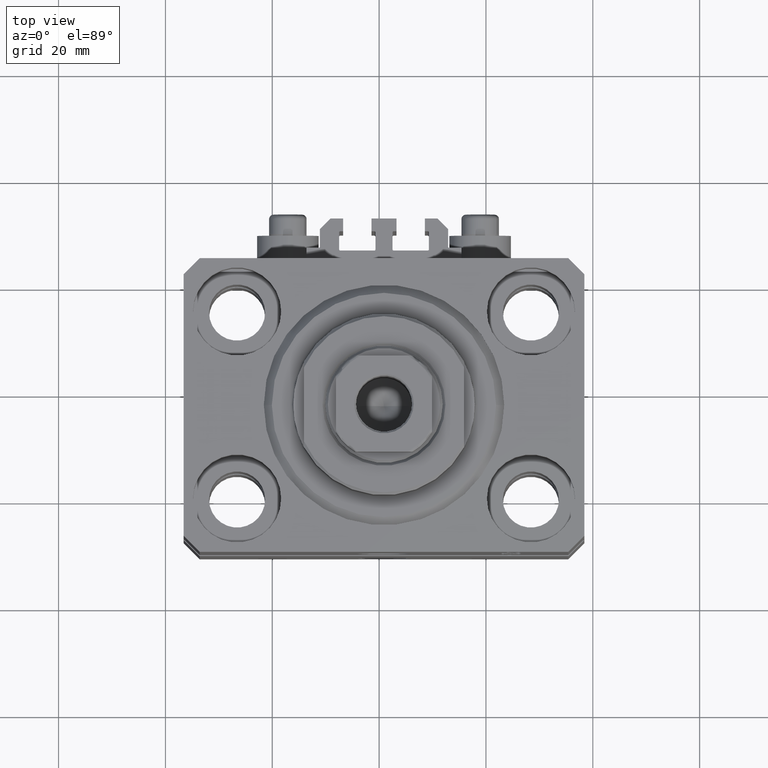
[diagram: clean part render]
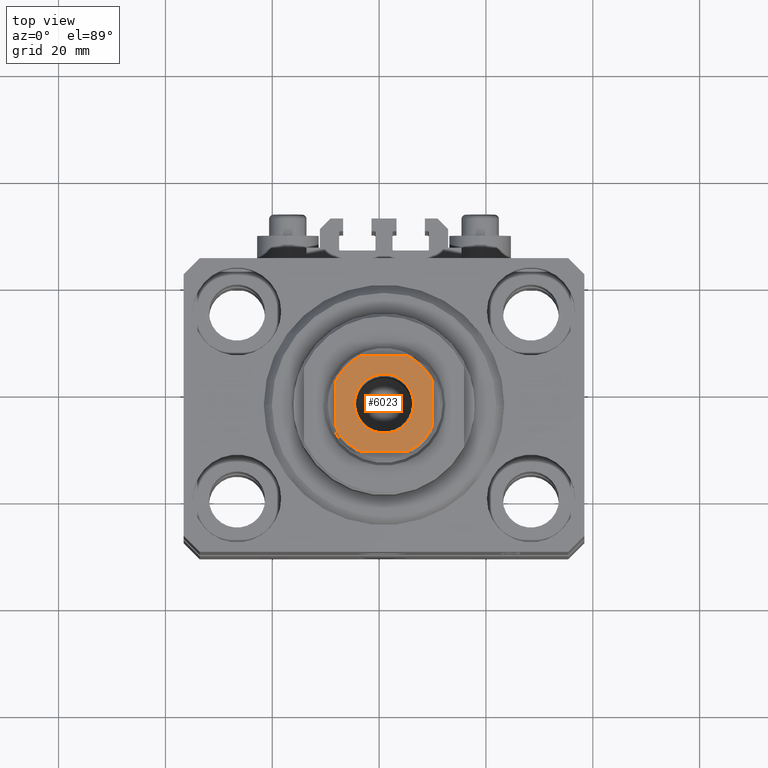
[diagram: same view with one face highlighted and labeled with its STEP entity id]
A machine part, top view. The second image highlights one B-rep face of the part: STEP entity #6023.
In plain terms, the highlighted planar face has unit normal (0, 0, 1).
Its self-contained STEP definition (entity closure, byte-faithful):
#748 = FACE_OUTER_BOUND ( 'NONE', #26894, .T. ) ;
#1466 = CARTESIAN_POINT ( 'NONE',  ( -8.999999999999998224, -9.000000000000001776, 85.10000000000000853 ) ) ;
#2529 = CARTESIAN_POINT ( 'NONE',  ( 0.000000000000000000, 0.000000000000000000, 85.10000000000000853 ) ) ;
#2531 = DIRECTION ( 'NONE',  ( 0.000000000000000000, -0.000000000000000000, -1.000000000000000000 ) ) ;
#3457 = CARTESIAN_POINT ( 'NONE',  ( 4.358898943540671311, -9.000000000000001776, 85.10000000000000853 ) ) ;
#3491 = VERTEX_POINT ( 'NONE', #3457 ) ;
#3780 = CIRCLE ( 'NONE', #36678, 10.00000000000000000 ) ;
#4042 = VERTEX_POINT ( 'NONE', #45029 ) ;
#4083 = VECTOR ( 'NONE', #24020, 1000.000000000000000 ) ;
#5099 = VERTEX_POINT ( 'NONE', #42933 ) ;
#5290 = CARTESIAN_POINT ( 'NONE',  ( -9.000000000000000000, 4.358898943540674864, 85.10000000000000853 ) ) ;
#6023 = ADVANCED_FACE ( 'NONE', ( #18975, #748 ), #33597, .T. ) ;
#7022 = CIRCLE ( 'NONE', #39920, 10.00000000000000000 ) ;
#7660 = VERTEX_POINT ( 'NONE', #5290 ) ;
#7718 = DIRECTION ( 'NONE',  ( -0.000000000000000000, 0.000000000000000000, 1.000000000000000000 ) ) ;
#7723 = CIRCLE ( 'NONE', #39069, 5.549999999999985612 ) ;
#7838 = EDGE_CURVE ( 'NONE', #5099, #20630, #3780, .T. ) ;
#7899 = CARTESIAN_POINT ( 'NONE',  ( 0.000000000000000000, 0.000000000000000000, 85.10000000000000853 ) ) ;
#8609 = AXIS2_PLACEMENT_3D ( 'NONE', #2529, #46568, #17148 ) ;
#9136 = ORIENTED_EDGE ( 'NONE', *, *, #23672, .T. ) ;
#9386 = CARTESIAN_POINT ( 'NONE',  ( 9.000000000000000000, 8.999999999999998224, 85.10000000000000853 ) ) ;
#10249 = CARTESIAN_POINT ( 'NONE',  ( 4.358898943540677529, 8.999999999999998224, 85.10000000000000853 ) ) ;
#11842 = EDGE_CURVE ( 'NONE', #13018, #47342, #19110, .T. ) ;
#11993 = CARTESIAN_POINT ( 'NONE',  ( 5.549999999999985612, 0.000000000000000000, 85.10000000000000853 ) ) ;
#12283 = VERTEX_POINT ( 'NONE', #10249 ) ;
#12573 = ORIENTED_EDGE ( 'NONE', *, *, #20111, .T. ) ;
#12665 = DIRECTION ( 'NONE',  ( -0.000000000000000000, 0.000000000000000000, 1.000000000000000000 ) ) ;
#13018 = VERTEX_POINT ( 'NONE', #44812 ) ;
#13020 = LINE ( 'NONE', #27204, #24001 ) ;
#13194 = LINE ( 'NONE', #24003, #41563 ) ;
#14018 = CARTESIAN_POINT ( 'NONE',  ( 0.000000000000000000, 0.000000000000000000, 85.10000000000000853 ) ) ;
#14232 = VERTEX_POINT ( 'NONE', #32368 ) ;
#16806 = CARTESIAN_POINT ( 'NONE',  ( -4.358898943540671311, -9.000000000000001776, 85.10000000000000853 ) ) ;
#17127 = EDGE_CURVE ( 'NONE', #3491, #4042, #7022, .T. ) ;
#17148 = DIRECTION ( 'NONE',  ( 1.000000000000000000, 0.000000000000000000, 0.000000000000000000 ) ) ;
#18275 = EDGE_CURVE ( 'NONE', #30333, #7660, #32355, .T. ) ;
#18414 = EDGE_CURVE ( 'NONE', #20630, #3491, #39059, .T. ) ;
#18975 = FACE_BOUND ( 'NONE', #22254, .T. ) ;
#18993 = CARTESIAN_POINT ( 'NONE',  ( -4.358898943540678417, 8.999999999999998224, 85.10000000000000853 ) ) ;
#19110 = CIRCLE ( 'NONE', #24484, 5.549999999999985612 ) ;
#19750 = EDGE_CURVE ( 'NONE', #7660, #5099, #13194, .T. ) ;
#19758 = DIRECTION ( 'NONE',  ( -1.000000000000000000, -0.000000000000000000, -0.000000000000000000 ) ) ;
#20011 = EDGE_CURVE ( 'NONE', #14232, #12283, #33927, .T. ) ;
#20111 = EDGE_CURVE ( 'NONE', #12283, #30333, #13020, .T. ) ;
#20238 = ORIENTED_EDGE ( 'NONE', *, *, #20011, .T. ) ;
#20505 = DIRECTION ( 'NONE',  ( 1.000000000000000000, 0.000000000000000000, 0.000000000000000000 ) ) ;
#20580 = AXIS2_PLACEMENT_3D ( 'NONE', #25705, #7718, #44583 ) ;
#20630 = VERTEX_POINT ( 'NONE', #16806 ) ;
#20746 = CARTESIAN_POINT ( 'NONE',  ( 0.000000000000000000, 0.000000000000000000, 85.10000000000000853 ) ) ;
#21122 = LINE ( 'NONE', #9386, #4083 ) ;
#22254 = EDGE_LOOP ( 'NONE', ( #24289, #33394 ) ) ;
#23672 = EDGE_CURVE ( 'NONE', #4042, #14232, #21122, .T. ) ;
#23980 = ORIENTED_EDGE ( 'NONE', *, *, #7838, .T. ) ;
#24001 = VECTOR ( 'NONE', #19758, 1000.000000000000000 ) ;
#24003 = CARTESIAN_POINT ( 'NONE',  ( -9.000000000000000000, 8.999999999999998224, 85.10000000000000853 ) ) ;
#24020 = DIRECTION ( 'NONE',  ( -9.637352644315595243E-17, 1.000000000000000000, -0.000000000000000000 ) ) ;
#24289 = ORIENTED_EDGE ( 'NONE', *, *, #32483, .T. ) ;
#24484 = AXIS2_PLACEMENT_3D ( 'NONE', #38139, #26450, #37915 ) ;
#25705 = CARTESIAN_POINT ( 'NONE',  ( 0.000000000000000000, 0.000000000000000000, 85.10000000000000853 ) ) ;
#26450 = DIRECTION ( 'NONE',  ( 0.000000000000000000, -0.000000000000000000, -1.000000000000000000 ) ) ;
#26894 = EDGE_LOOP ( 'NONE', ( #38618, #23980, #28819, #39607, #9136, #20238, #12573, #34358 ) ) ;
#27204 = CARTESIAN_POINT ( 'NONE',  ( -9.000000000000000000, 8.999999999999998224, 85.10000000000000853 ) ) ;
#27829 = DIRECTION ( 'NONE',  ( 1.000000000000000000, 0.000000000000000000, 0.000000000000000000 ) ) ;
#28657 = DIRECTION ( 'NONE',  ( -0.000000000000000000, 0.000000000000000000, 1.000000000000000000 ) ) ;
#28819 = ORIENTED_EDGE ( 'NONE', *, *, #18414, .T. ) ;
#28890 = DIRECTION ( 'NONE',  ( -0.000000000000000000, 0.000000000000000000, 1.000000000000000000 ) ) ;
#30182 = DIRECTION ( 'NONE',  ( 1.000000000000000000, 0.000000000000000000, 0.000000000000000000 ) ) ;
#30333 = VERTEX_POINT ( 'NONE', #18993 ) ;
#32015 = CARTESIAN_POINT ( 'NONE',  ( 0.000000000000000000, 0.000000000000000000, 85.10000000000000853 ) ) ;
#32355 = CIRCLE ( 'NONE', #8609, 10.00000000000000000 ) ;
#32368 = CARTESIAN_POINT ( 'NONE',  ( 9.000000000000000000, 4.358898943540675752, 85.10000000000000853 ) ) ;
#32483 = EDGE_CURVE ( 'NONE', #47342, #13018, #7723, .T. ) ;
#33168 = AXIS2_PLACEMENT_3D ( 'NONE', #32015, #28890, #35372 ) ;
#33394 = ORIENTED_EDGE ( 'NONE', *, *, #11842, .T. ) ;
#33597 = PLANE ( 'NONE',  #20580 ) ;
#33927 = CIRCLE ( 'NONE', #33168, 10.00000000000000000 ) ;
#34358 = ORIENTED_EDGE ( 'NONE', *, *, #18275, .T. ) ;
#35372 = DIRECTION ( 'NONE',  ( 1.000000000000000000, 0.000000000000000000, 0.000000000000000000 ) ) ;
#36678 = AXIS2_PLACEMENT_3D ( 'NONE', #7899, #12665, #30182 ) ;
#37915 = DIRECTION ( 'NONE',  ( 1.000000000000000000, 0.000000000000000000, 0.000000000000000000 ) ) ;
#38139 = CARTESIAN_POINT ( 'NONE',  ( 0.000000000000000000, 0.000000000000000000, 85.10000000000000853 ) ) ;
#38618 = ORIENTED_EDGE ( 'NONE', *, *, #19750, .T. ) ;
#39059 = LINE ( 'NONE', #1466, #41489 ) ;
#39069 = AXIS2_PLACEMENT_3D ( 'NONE', #20746, #2531, #44650 ) ;
#39607 = ORIENTED_EDGE ( 'NONE', *, *, #17127, .T. ) ;
#39920 = AXIS2_PLACEMENT_3D ( 'NONE', #14018, #28657, #20505 ) ;
#41489 = VECTOR ( 'NONE', #27829, 1000.000000000000000 ) ;
#41563 = VECTOR ( 'NONE', #47350, 1000.000000000000000 ) ;
#42933 = CARTESIAN_POINT ( 'NONE',  ( -9.000000000000000000, -4.358898943540675752, 85.10000000000000853 ) ) ;
#44583 = DIRECTION ( 'NONE',  ( 1.000000000000000000, 0.000000000000000000, 0.000000000000000000 ) ) ;
#44650 = DIRECTION ( 'NONE',  ( 1.000000000000000000, 0.000000000000000000, 0.000000000000000000 ) ) ;
#44812 = CARTESIAN_POINT ( 'NONE',  ( -5.549999999999985612, 6.796789735267793031E-16, 85.10000000000000853 ) ) ;
#45029 = CARTESIAN_POINT ( 'NONE',  ( 9.000000000000001776, -4.358898943540675752, 85.10000000000000853 ) ) ;
#46568 = DIRECTION ( 'NONE',  ( -0.000000000000000000, 0.000000000000000000, 1.000000000000000000 ) ) ;
#47342 = VERTEX_POINT ( 'NONE', #11993 ) ;
#47350 = DIRECTION ( 'NONE',  ( 9.637352644315595243E-17, -1.000000000000000000, 0.000000000000000000 ) ) ;